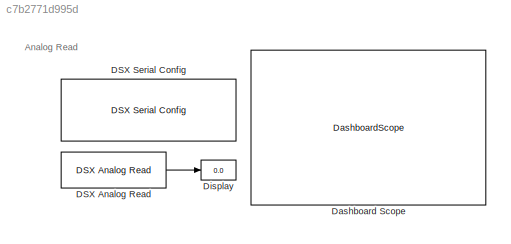
MODEL slx_c7b2771d995d
KIND model
CONFIG AbsTol = auto
CONFIG EnableMultiTasking = off
CONFIG FixedStep = 0.001
CONFIG MaxStep = auto
CONFIG MinStep = auto
CONFIG RelTol = 1e-3
CONFIG SampleTimeConstraint = Unconstrained
CONFIG SolverName = FixedStepAuto
CONFIG StartTime = 0.0
CONFIG StopTime = inf
BLOCK [Reference] DSX Analog Read  REF=DSX_Lib/Read Blocks/DSX Analog Read
  NameLocation = top
  Ports = [0, 1]
  SourceBlock = DSX_Lib/Read Blocks/DSX Analog Read
  SourceProductName = DSX Library
BLOCK [Reference] DSX Serial Config  REF=DSX_Lib/DSX Serial Config
  NameLocation = top
  Ports = []
  SourceBlock = DSX_Lib/DSX Serial Config
  SourceProductName = DSX Library
BLOCK [DashboardScope] Dashboard Scope
  TimeSpan = 5
  Ymax = 1
  Ymin = 0
BLOCK [Display] Display
  Decimation = 1
  Ports = [1]
ANNOTATION (root): Analog Read
LINE DSX Analog Read:1 -> Display:1
